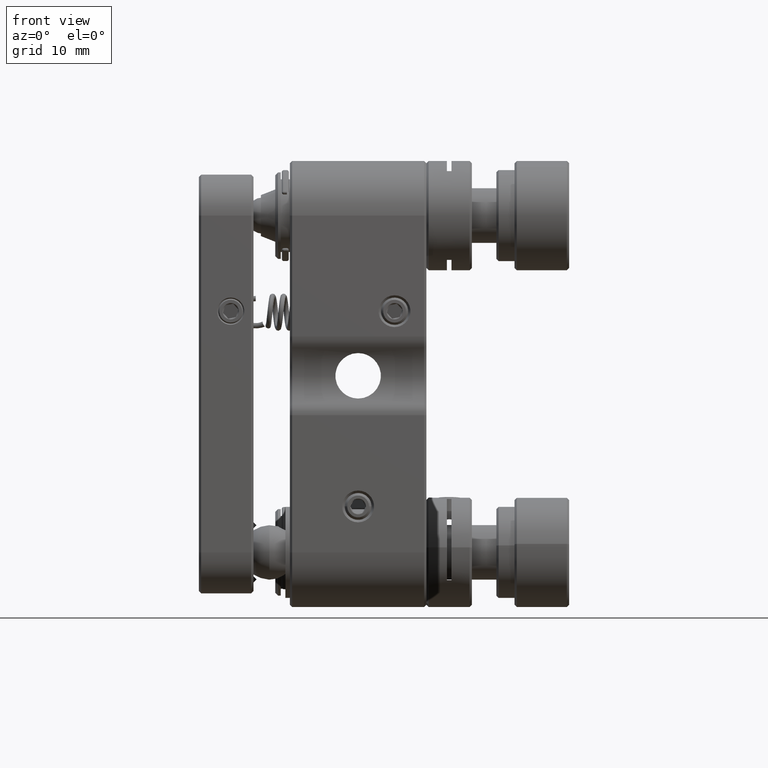
[diagram: clean part render]
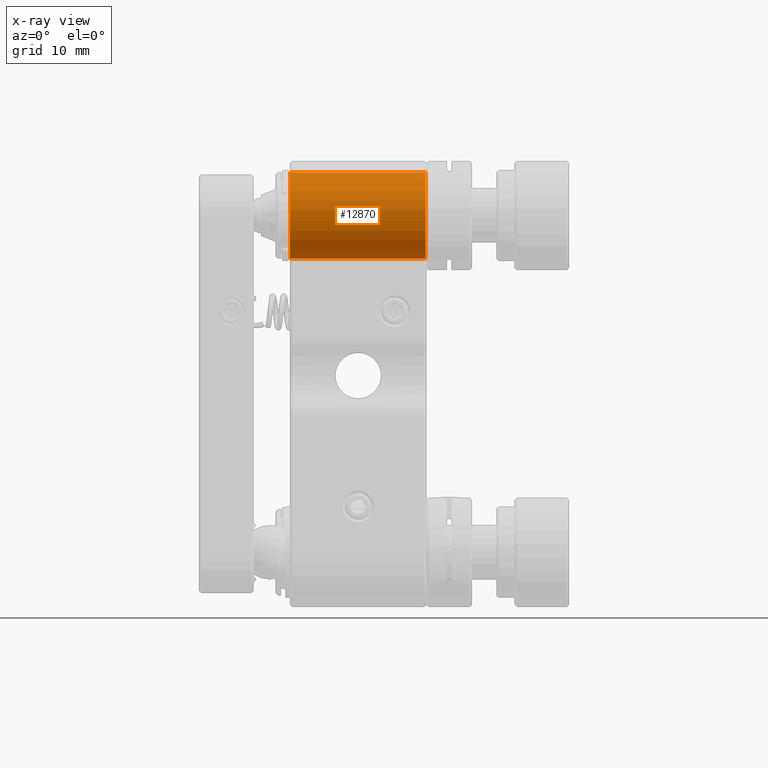
[diagram: x-ray — body ghosted, one internal face saturated and labeled with its STEP entity id]
A machine part, front view, then the same camera in x-ray: the body is ghosted and one INTERNAL B-rep face — a face not visible from any outside direction — is saturated and labeled: STEP entity #12870.
In plain terms, the highlighted cylindrical surface (partial cylindrical patch) has radius 4.75 mm, axis along (-1, 0, 0).
Its self-contained STEP definition (entity closure, byte-faithful):
#377 = CYLINDRICAL_SURFACE ( 'NONE', #40020, 4.750000000000000888 ) ;
#3967 = VERTEX_POINT ( 'NONE', #40956 ) ;
#4736 = DIRECTION ( 'NONE',  ( -1.000000000000000000, 4.293860811011342334E-31, 1.224646799147352468E-16 ) ) ;
#4922 = CARTESIAN_POINT ( 'NONE',  ( 29.47056274847713553, -18.52199009068912261, 13.75005090175573663 ) ) ;
#7785 = CARTESIAN_POINT ( 'NONE',  ( 29.47056274847713553, -18.49999999999999645, 18.50000000000000000 ) ) ;
#10332 = VERTEX_POINT ( 'NONE', #26566 ) ;
#10876 = CARTESIAN_POINT ( 'NONE',  ( -7.500000000000004441, -18.52199009068912261, 13.75005090175574196 ) ) ;
#12197 = EDGE_CURVE ( 'NONE', #3967, #20274, #31115, .T. ) ;
#12870 = ADVANCED_FACE ( 'NONE', ( #13388 ), #377, .T. ) ;
#12977 = DIRECTION ( 'NONE',  ( 1.826024711554533420E-16, 0.004629492776658074467, 0.9999892838408973583 ) ) ;
#13388 = FACE_OUTER_BOUND ( 'NONE', #21663, .T. ) ;
#14612 = ORIENTED_EDGE ( 'NONE', *, *, #27968, .T. ) ;
#15205 = CARTESIAN_POINT ( 'NONE',  ( 29.47056274847713553, -18.47800990931087028, 23.24994909824426159 ) ) ;
#15745 = DIRECTION ( 'NONE',  ( -1.826024711554533420E-16, -0.004629492776658074467, -0.9999892838408973583 ) ) ;
#16527 = EDGE_CURVE ( 'NONE', #18221, #10332, #30560, .T. ) ;
#16919 = LINE ( 'NONE', #15205, #23384 ) ;
#18221 = VERTEX_POINT ( 'NONE', #30384 ) ;
#19396 = ORIENTED_EDGE ( 'NONE', *, *, #16527, .T. ) ;
#20274 = VERTEX_POINT ( 'NONE', #10876 ) ;
#21663 = EDGE_LOOP ( 'NONE', ( #26686, #19396, #14612, #24783 ) ) ;
#21703 = AXIS2_PLACEMENT_3D ( 'NONE', #28129, #25543, #15745 ) ;
#21794 = DIRECTION ( 'NONE',  ( -1.000000000000000000, 4.293860811011342334E-31, 1.224646799147352468E-16 ) ) ;
#23384 = VECTOR ( 'NONE', #4736, 1000.000000000000000 ) ;
#24783 = ORIENTED_EDGE ( 'NONE', *, *, #12197, .T. ) ;
#25543 = DIRECTION ( 'NONE',  ( -1.000000000000000000, 4.293860811011342334E-31, 1.224646799147352468E-16 ) ) ;
#26566 = CARTESIAN_POINT ( 'NONE',  ( 7.400000000000001243, -18.47800990931087028, 23.24994909824426514 ) ) ;
#26686 = ORIENTED_EDGE ( 'NONE', *, *, #35216, .F. ) ;
#27968 = EDGE_CURVE ( 'NONE', #10332, #3967, #16919, .T. ) ;
#28129 = CARTESIAN_POINT ( 'NONE',  ( 7.400000000000000355, -18.49999999999999645, 18.50000000000000355 ) ) ;
#30230 = DIRECTION ( 'NONE',  ( 0.000000000000000000, 0.004629492776658074467, 0.9999892838408973583 ) ) ;
#30384 = CARTESIAN_POINT ( 'NONE',  ( 7.399999999999999467, -18.52199009068912261, 13.75005090175573841 ) ) ;
#30560 = CIRCLE ( 'NONE', #21703, 4.750000000000000888 ) ;
#31115 = CIRCLE ( 'NONE', #41357, 4.750000000000000888 ) ;
#35016 = LINE ( 'NONE', #4922, #38692 ) ;
#35174 = DIRECTION ( 'NONE',  ( 1.000000000000000000, -4.293860811011342334E-31, -1.224646799147352468E-16 ) ) ;
#35216 = EDGE_CURVE ( 'NONE', #18221, #20274, #35016, .T. ) ;
#38692 = VECTOR ( 'NONE', #21794, 1000.000000000000000 ) ;
#38795 = CARTESIAN_POINT ( 'NONE',  ( -7.500000000000003553, -18.49999999999999645, 18.50000000000000711 ) ) ;
#39431 = DIRECTION ( 'NONE',  ( -1.000000000000000000, 4.293860811011342334E-31, 1.224646799147352468E-16 ) ) ;
#40020 = AXIS2_PLACEMENT_3D ( 'NONE', #7785, #39431, #30230 ) ;
#40956 = CARTESIAN_POINT ( 'NONE',  ( -7.500000000000002665, -18.47800990931087028, 23.24994909824426870 ) ) ;
#41357 = AXIS2_PLACEMENT_3D ( 'NONE', #38795, #35174, #12977 ) ;